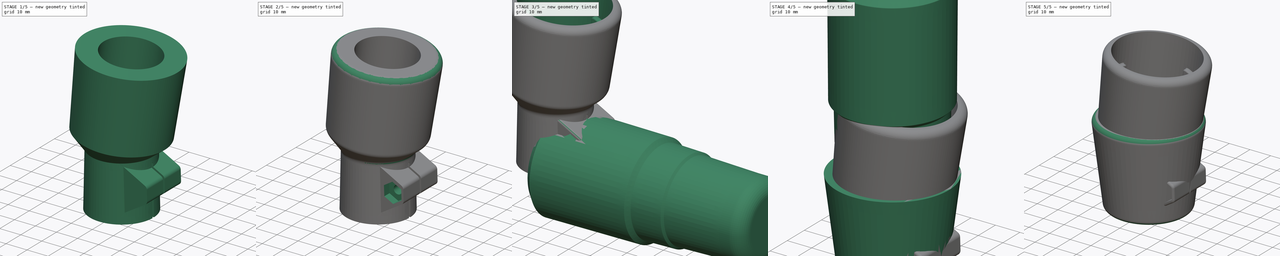
[diagram: build sequence overview — one tinted view per stage of 5, left to right]
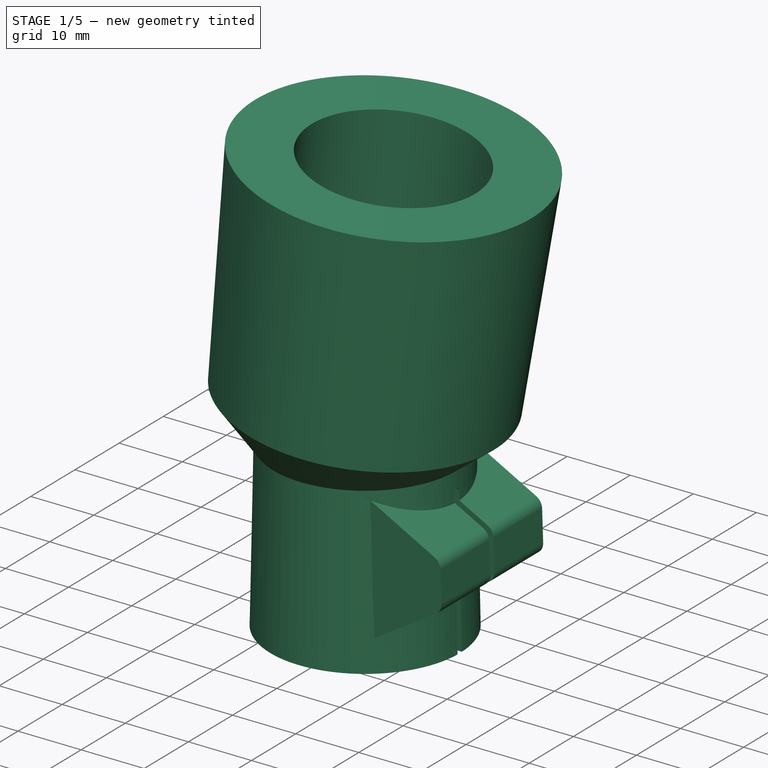
[diagram: stage 1 of 5 — iso view after this stage's code; geometry added in this stage tinted green]
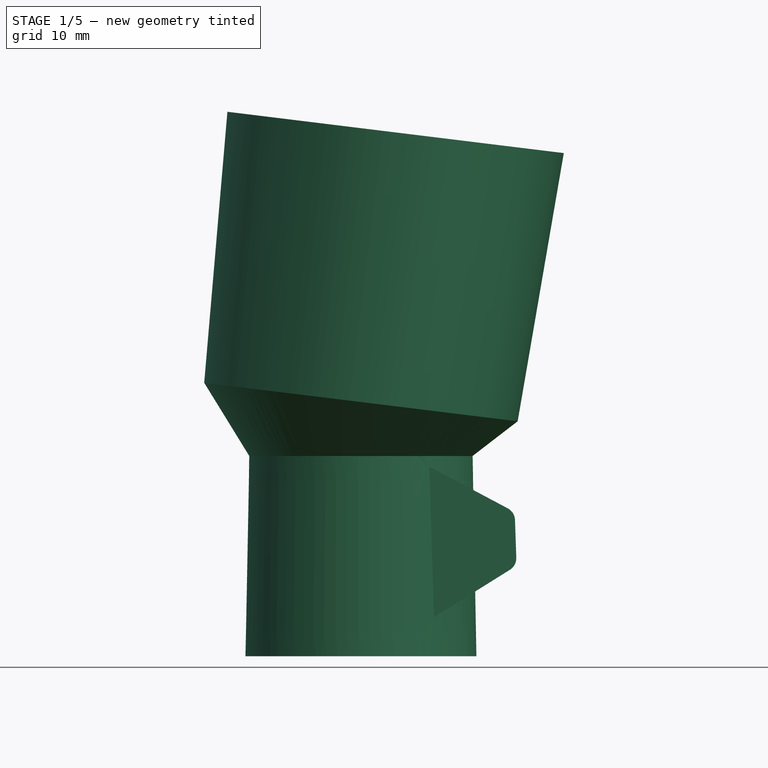
[diagram: stage 1 of 5 — front view after this stage's code; geometry added in this stage tinted green]
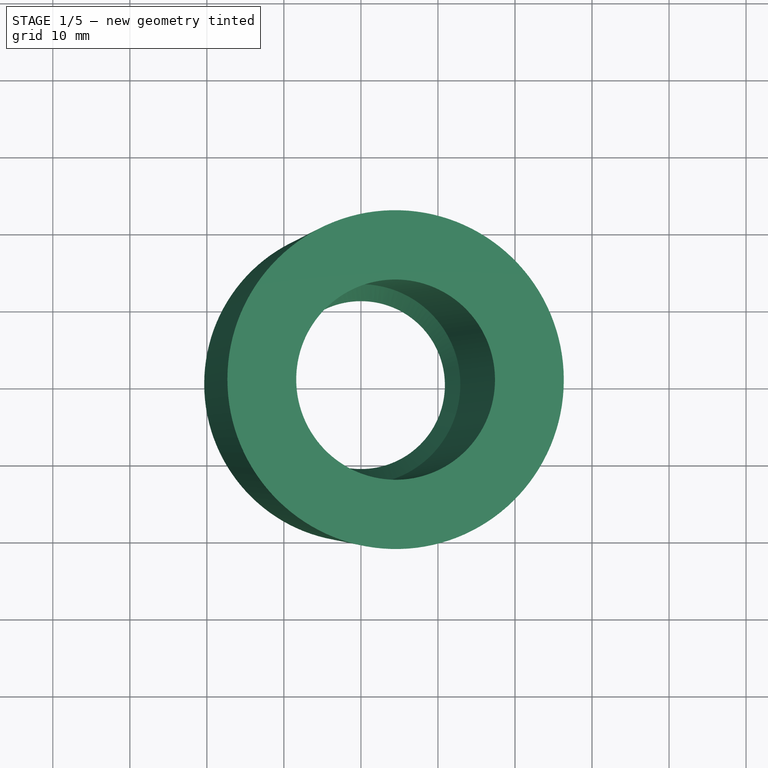
[diagram: stage 1 of 5 — top view after this stage's code; geometry added in this stage tinted green]
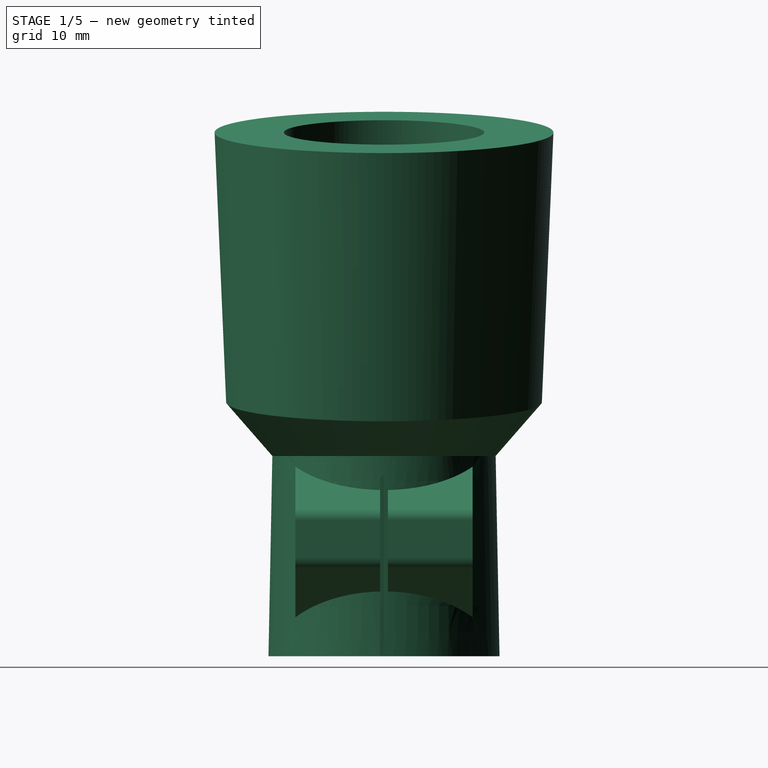
[diagram: stage 1 of 5 — right view after this stage's code; geometry added in this stage tinted green]
FCSTD DOCUMENT  (FreeCAD 0.19R)
Label: MikitaPalmSander
License: Creative Commons Attribution-NonCommercial
LicenseURL: http://creativecommons.org/licenses/by-nc/4.0/
objects: Sketcher::SketchObject×15, PartDesign::Pocket×4, Part::Cut×3, PartDesign::Body×2, Part::Fillet×2, PartDesign::Fillet×2, Part::Cone×1, Part::Cylinder×1, PartDesign::Revolution×1, PartDesign::Chamfer×1, Part::Compound×1, Part::Offset×1, PartDesign::AdditiveLoft×1, App::Link×1, PartDesign::Pad×1, PartDesign::SubtractiveLoft×1
note: 48 computed .brp shape members not serialized (recipe doc carries the construction recipe); baked Part::Feature solids carry a one-line shape summary decoded from their .brp
EXTERNAL_REF file=VacuumNozzle.FCStd obj=Body001

FEATURE [Sketcher::SketchObject] Sketch001
  AttachmentOffset = pos=(0,0,27) rot=(0,0,1;0rad)
  FullyConstrained = true
  MapMode = 5
  Placement = pos=(0,0,27) rot=(0,0,1;0rad)
  Support = -> [XY_Plane001]
  sketch-geometry (1):
    g0: Circle CenterX=0 CenterY=0 CenterZ=0 NormalX=0 NormalY=0 NormalZ=1 AngleXU=0 Radius=10.9
  constraints (2):
    c: Coincident(g0,g-1)
    c: Diameter(g0) = 21.8
FEATURE [Sketcher::SketchObject] Sketch002
  FullyConstrained = true
  MapMode = 5
  Support = -> [XY_Plane001]
  sketch-geometry (1):
    g0: Circle CenterX=0 CenterY=0 CenterZ=0 NormalX=0 NormalY=0 NormalZ=1 AngleXU=0 Radius=11.9
  constraints (2):
    c: Coincident(g0,g-1)
    c: Diameter(g0) = 23.8
FEATURE [Sketcher::SketchObject] Sketch003
  AttachmentOffset = pos=(0,0,33) rot=(0,1,0;0.122173rad)
  FullyConstrained = true
  MapMode = 5
  Placement = pos=(0,0,33) rot=(0,1,0;0.122173rad)
  Support = -> [XY_Plane001]
  sketch-geometry (1):
    g0: Circle CenterX=0 CenterY=0 CenterZ=0 NormalX=0 NormalY=0 NormalZ=1 AngleXU=0 Radius=13
  constraints (2):
    c: Coincident(g0,g-1)
    c: Diameter(g0) = 26
FEATURE [Sketcher::SketchObject] Sketch004
  FullyConstrained = true
  MapMode = 5
  Support = -> [XY_Plane001]
  sketch-geometry (1):
    g0: Circle CenterX=0 CenterY=0 CenterZ=0 NormalX=0 NormalY=0 NormalZ=1 AngleXU=0 Radius=15
  constraints (2):
    c: Coincident(g0,g-1)
    c: Diameter(g0) = 30
FEATURE [Sketcher::SketchObject] Sketch005
  AttachmentOffset = pos=(0,0,26) rot=(0,0,1;0rad)
  FullyConstrained = true
  MapMode = 5
  Placement = pos=(0,0,26) rot=(0,0,1;0rad)
  Support = -> [XY_Plane001]
  sketch-geometry (1):
    g0: Circle CenterX=0 CenterY=0 CenterZ=0 NormalX=0 NormalY=0 NormalZ=1 AngleXU=0 Radius=14.5
  constraints (2):
    c: Coincident(g0,g-1)
    c: Diameter(g0) = 29
FEATURE [Sketcher::SketchObject] Sketch006
  AttachmentOffset = pos=(0,0,33) rot=(0,1,0;0.122173rad)
  FullyConstrained = true
  MapMode = 5
  Placement = pos=(0,0,33) rot=(0,1,0;0.122173rad)
  Support = -> [XY_Plane001]
  sketch-geometry (1):
    g0: Circle CenterX=0 CenterY=0 CenterZ=0 NormalX=0 NormalY=0 NormalZ=1 AngleXU=0 Radius=20.5
  constraints (2):
    c: Coincident(g0,g-1)
    c: Diameter(g0) = 41
FEATURE [Sketcher::SketchObject] Sketch007
  AttachmentOffset = pos=(4.5,0,68) rot=(0,1,0;0.122173rad)
  FullyConstrained = true
  MapMode = 5
  Placement = pos=(4.5,0,68) rot=(0,1,0;0.122173rad)
  Support = -> [XY_Plane001]
  sketch-geometry (1):
    g0: Circle CenterX=0 CenterY=0 CenterZ=0 NormalX=0 NormalY=0 NormalZ=1 AngleXU=0 Radius=22
  constraints (2):
    c: Coincident(g0,g-1)
    c: Diameter(g0) = 44
FEATURE [PartDesign::AdditiveLoft] AdditiveLoft
  Closed = false
  Profile = -> Sketch004
  Ruled = true
  Sections = -> [Sketch005,Sketch006,Sketch007]
FEATURE [Sketcher::SketchObject] Sketch008
  FullyConstrained = true
  MapMode = 5
  Placement = pos=(0,0,0) rot=(1,0,0;1.5708rad)
  Support = -> [XZ_Plane001]
  sketch-geometry (6):
    g0: LineSegment StartX=9.14837 StartY=4.85166 StartZ=0 EndX=19.325 EndY=11.2107 EndZ=0
    g1: ArcOfCircle CenterX=18.3711 CenterY=12.7372 CenterZ=0 NormalX=0 NormalY=0 NormalZ=1 AngleXU=0 Radius=1.8 StartAngle=5.27089 EndAngle=6.31809
    g2: LineSegment StartX=20.17 StartY=12.8 StartZ=0 EndX=19.9996 EndY=17.6793 EndZ=0
    g3: ArcOfCircle CenterX=18.2007 CenterY=17.6165 CenterZ=0 NormalX=0 NormalY=0 NormalZ=1 AngleXU=0 Radius=1.8 StartAngle=0.0349066 EndAngle=1.0821
    g4: LineSegment StartX=19.0458 StartY=19.2058 StartZ=0 EndX=8.45038 EndY=24.8395 EndZ=0
    g5: LineSegment StartX=9.14837 StartY=4.85166 StartZ=0 EndX=8.45038 EndY=24.8395 EndZ=0
  constraints (16):
    c: Tangent(g0,g1) = -1.5708
    c: Tangent(g1,g2) = -1.5708
    c: Tangent(g2,g3) = -1.5708
    c: Tangent(g3,g4) = -1.5708
    c: Angle(g2) = 1.6057
    c: Equal(g1,g3)
    c: Radius(g1) = 1.8
    c: Angle(g0) = 0.558505
    c: Angle(g4) = 2.6529
    c: Distance(g3,g0) = 8
    c: DistanceY(g1) = 12.8
    c: DistanceX(g1) = 20.17
    c: Coincident(g5,g0)
    c: Coincident(g5,g4)
    c: Distance(g5) = 20
    c: Angle(g5) = 1.6057
FEATURE [App::Link] Link  label="NozzleKnockoutV2"
  LinkPlacement = pos=(11.932,1.61409e-05,130.821) rot=(0,1,0;1.69297rad)
  LinkedObject = -> <external VacuumNozzle.FCStd>#Body001
  Placement = pos=(11.932,1.61409e-05,130.821) rot=(0,1,0;1.69297rad)
FEATURE [Sketcher::SketchObject] Sketch009
  FullyConstrained = true
  MapMode = 5
  Placement = pos=(0,0,0) rot=(0.57735,0.57735,0.57735;2.0944rad)
  Support = -> [YZ_Plane001]
  sketch-geometry (4):
    g0: LineSegment StartX=-0.5 StartY=-1 StartZ=0 EndX=0.5 EndY=-1 EndZ=0
    g1: LineSegment StartX=0.5 StartY=-1 StartZ=0 EndX=0.5 EndY=23 EndZ=0
    g2: LineSegment StartX=-0.5 StartY=23 StartZ=0 EndX=-0.5 EndY=-1 EndZ=0
    g3: ArcOfCircle CenterX=0 CenterY=23 CenterZ=0 NormalX=0 NormalY=0 NormalZ=1 AngleXU=0 Radius=0.5 StartAngle=-3.544e-13 EndAngle=3.14159
  constraints (10):
    c: Coincident(g0,g1)
    c: Coincident(g2,g0)
    c: Vertical(g1)
    c: Vertical(g2)
    c: DistanceX(g0,g0) = 1
    c: Symmetric(g0,g0,g-2)
    c: DistanceY(g3) = 23
    c: Tangent(g2,g3) = -1.5708
    c: Tangent(g3,g1) = -1.5708
    c: DistanceY(g0) = -1
FEATURE [Sketcher::SketchObject] Sketch010
  AttachmentOffset = pos=(0,0,14) rot=(0,0,1;0rad)
  FullyConstrained = true
  MapMode = 5
  Placement = pos=(0,-14,-3.1e-15) rot=(1,0,0;1.5708rad)
  Support = -> [XZ_Plane001]
  sketch-geometry (7):
    g0: LineSegment StartX=15.1983 StartY=10.2699 StartZ=0 EndX=19.1955 EndY=12.8066 EndZ=0
    g1: LineSegment StartX=19.1955 StartY=12.8066 StartZ=0 EndX=18.9973 EndY=17.5367 EndZ=0
    g2: LineSegment StartX=18.9973 StartY=17.5367 StartZ=0 EndX=14.8017 EndY=19.7301 EndZ=0
    g3: LineSegment StartX=14.8017 StartY=19.7301 StartZ=0 EndX=10.8045 EndY=17.1934 EndZ=0
    g4: LineSegment StartX=10.8045 StartY=17.1934 StartZ=0 EndX=11.0027 EndY=12.4633 EndZ=0
    g5: LineSegment StartX=11.0027 StartY=12.4633 StartZ=0 EndX=15.1983 EndY=10.2699 EndZ=0
    g6: Circle CenterX=15 CenterY=15 CenterZ=0 NormalX=0 NormalY=0 NormalZ=1 AngleXU=0 Radius=4.73427
  constraints (17):
    c: Coincident(g0,g1)
    c: Coincident(g1,g2)
    c: Coincident(g2,g3)
    c: Coincident(g3,g4)
    c: Coincident(g4,g5)
    c: Coincident(g5,g0)
    c: Equal(g0, g1-g5) x5
    c: PointOnObject(g0,g6)
    c: PointOnObject(g1,g6)
    c: PointOnObject(g2,g6)
    c: PointOnObject(g3,g6)
    c: PointOnObject(g4,g6)
    c: PointOnObject(g5,g6)
    c: Distance(g0,g4) = 8.2
    c: DistanceX(g6) = 15
    c: Angle(g-2,g1) = 0.0418879
    c: DistanceY(g6) = 15
FEATURE [Sketcher::SketchObject] Sketch011
  FullyConstrained = true
  MapMode = 5
  Placement = pos=(0,0,0) rot=(1,0,0;1.5708rad)
  Support = -> [XZ_Plane001]
  sketch-geometry (1):
    g0: Circle CenterX=15 CenterY=15 CenterZ=0 NormalX=0 NormalY=0 NormalZ=1 AngleXU=0 Radius=2
  constraints (3):
    c: Diameter(g0) = 4
    c: DistanceX(g0) = 15
    c: DistanceY(g0) = 15
FEATURE [PartDesign::Pad] Pad
  BaseFeature = -> AdditiveLoft
  Direction = (0,-1,2e-16)
  Length = 23
  Length2 = 100
  Midplane = true
  Profile = -> Sketch008
  Type = 0
FEATURE [Sketcher::SketchObject] Sketch012
  FullyConstrained = false
  MapMode = 5
  Support = -> [XY_Plane001]
  sketch-geometry (6):
    g0: ArcOfCircle CenterX=12.4514 CenterY=0 CenterZ=0 NormalX=0 NormalY=0 NormalZ=1 AngleXU=0 Radius=7.72998 StartAngle=5.34152 EndAngle=7.22485
    g1: LineSegment StartX=17 StartY=-6.25 StartZ=0 EndX=3.25961 EndY=-16.25 EndZ=0
    g2: LineSegment StartX=3.25961 StartY=-16.25 StartZ=0 EndX=21.2596 EndY=-16.25 EndZ=0
    g3: LineSegment StartX=21.2596 StartY=-16.25 StartZ=0 EndX=21.2596 EndY=16.25 EndZ=0
    g4: LineSegment StartX=21.2596 StartY=16.25 StartZ=0 EndX=3.25961 EndY=16.25 EndZ=0
    g5: LineSegment StartX=3.25961 StartY=16.25 StartZ=0 EndX=17 EndY=6.25 EndZ=0
  constraints (15):
    c: PointOnObject(g0,g-1)
    c: Distance(g0,g0) = 12.5
    c: Coincident(g1,g2)
    c: Coincident(g2,g3)
    c: Vertical(g3)
    c: Coincident(g3,g4)
    c: Horizontal(g4)
    c: Coincident(g4,g5)
    c: Tangent(g5,g0) = 1.5708
    c: Tangent(g1,g0) = 1.5708
    c: Symmetric(g1,g4,g-1)
    c: Horizontal(g2)
    c: DistanceX(g0) = 17
    c: DistanceY(g3,g3) = 32.5
    c: DistanceX(g2,g2) = 18
FEATURE [Sketcher::SketchObject] Sketch013
  AttachmentOffset = pos=(0,0,-13) rot=(0,0,1;0rad)
  FullyConstrained = true
  MapMode = 5
  Placement = pos=(0,13,2.9e-15) rot=(1,0,0;1.5708rad)
  Support = -> [XZ_Plane001]
  sketch-geometry (1):
    g0: Circle CenterX=15 CenterY=15 CenterZ=0 NormalX=0 NormalY=0 NormalZ=1 AngleXU=0 Radius=3.8
  constraints (3):
    c: Diameter(g0) = 7.6
    c: DistanceX(g0) = 15
    c: DistanceY(g0) = 15
FEATURE [Sketcher::SketchObject] Sketch014
  FullyConstrained = true
  MapMode = 11
  Placement = pos=(4.5,0,68) rot=(0.060935,0.060935,0.99628;1.57452rad)
  Support = -> [Pad]
  sketch-geometry (1):
    g0: Circle CenterX=0 CenterY=0 CenterZ=0 NormalX=0 NormalY=0 NormalZ=1 AngleXU=0 Radius=13
  constraints (2):
    c: Coincident(g0,g-1)
    c: Diameter(g0) = 26
FEATURE [PartDesign::Pocket] Pocket
  BaseFeature = -> Pad
  Length = 5
  Length2 = 100
  Profile = -> Sketch009
  Reversed = true
  Type = 1
FEATURE [PartDesign::SubtractiveLoft] SubtractiveLoft
  BaseFeature = -> Pocket
  Closed = false
  Profile = -> Sketch002
  Ruled = true
  Sections = -> [Sketch001,Sketch003,Sketch014]
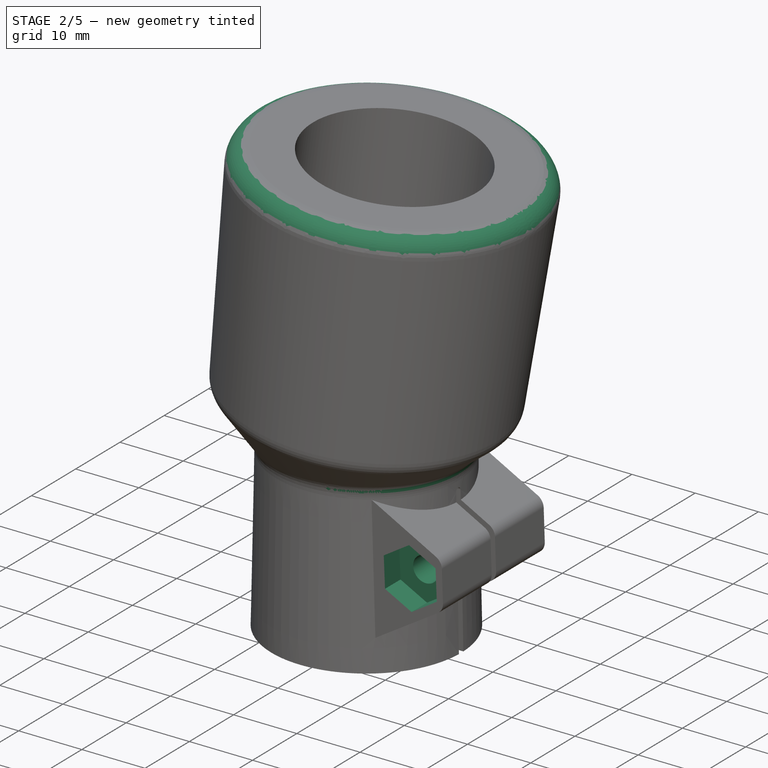
[diagram: stage 2 of 5 — iso view after this stage's code; geometry added in this stage tinted green]
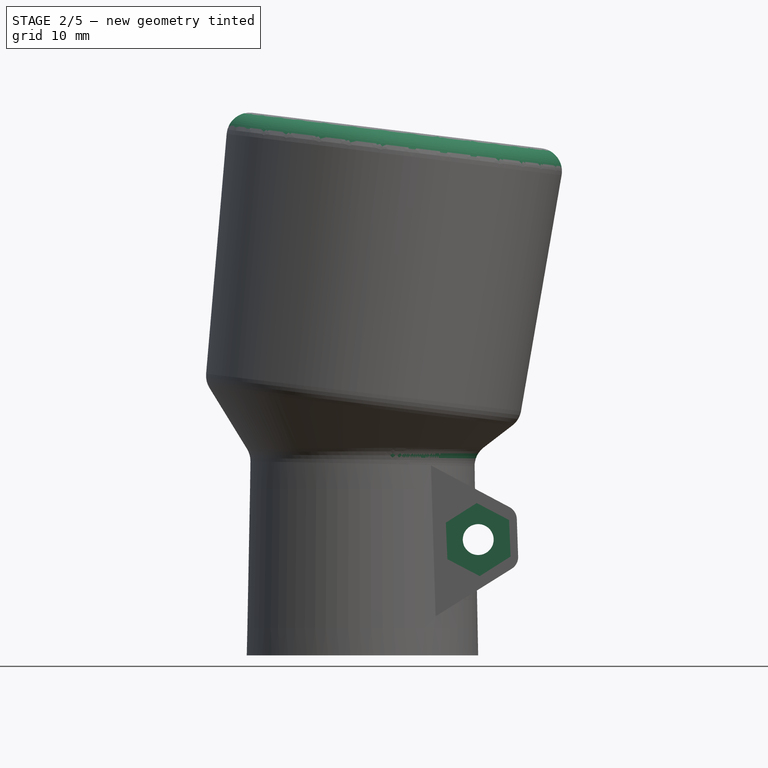
[diagram: stage 2 of 5 — front view after this stage's code; geometry added in this stage tinted green]
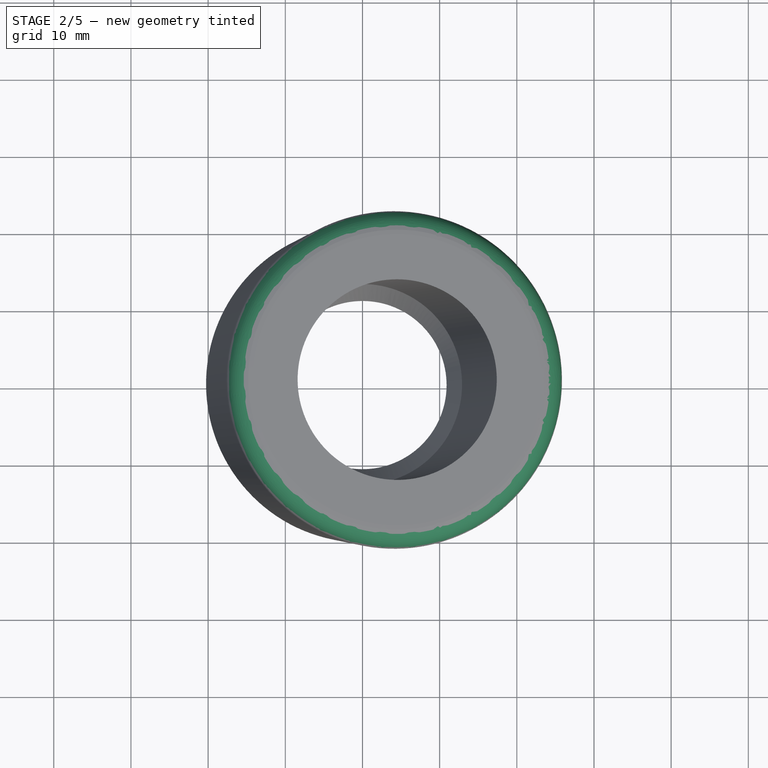
[diagram: stage 2 of 5 — top view after this stage's code; geometry added in this stage tinted green]
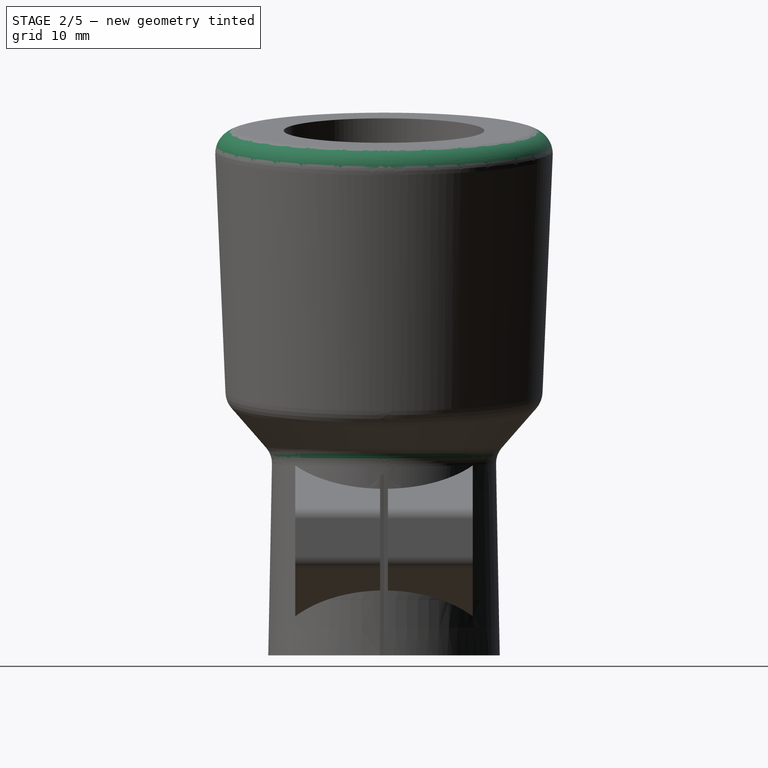
[diagram: stage 2 of 5 — right view after this stage's code; geometry added in this stage tinted green]
FEATURE [PartDesign::Pocket] Pocket001
  BaseFeature = -> SubtractiveLoft
  Length = 6
  Length2 = 100
  Profile = -> Sketch010
  Type = 0
FEATURE [PartDesign::Pocket] Pocket002
  BaseFeature = -> Pocket001
  Length = 5
  Length2 = 100
  Profile = -> Sketch013
  Reversed = true
  Type = 0
FEATURE [PartDesign::Pocket] Pocket003
  BaseFeature = -> Pocket002
  Length = 5
  Length2 = 100
  Midplane = true
  Profile = -> Sketch011
  Type = 1
FEATURE [PartDesign::Fillet] Fillet002
  Base = -> Pocket003 [Edge66,Edge30,Edge90]
  BaseFeature = -> Pocket003
  Radius = 3
  SupportTransform = false
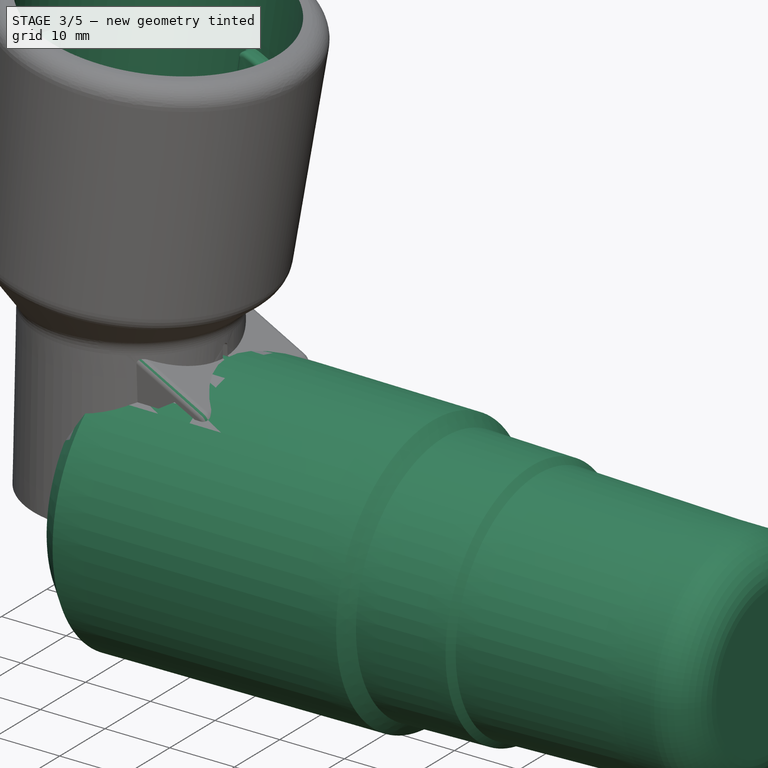
[diagram: stage 3 of 5 — iso view after this stage's code; geometry added in this stage tinted green]
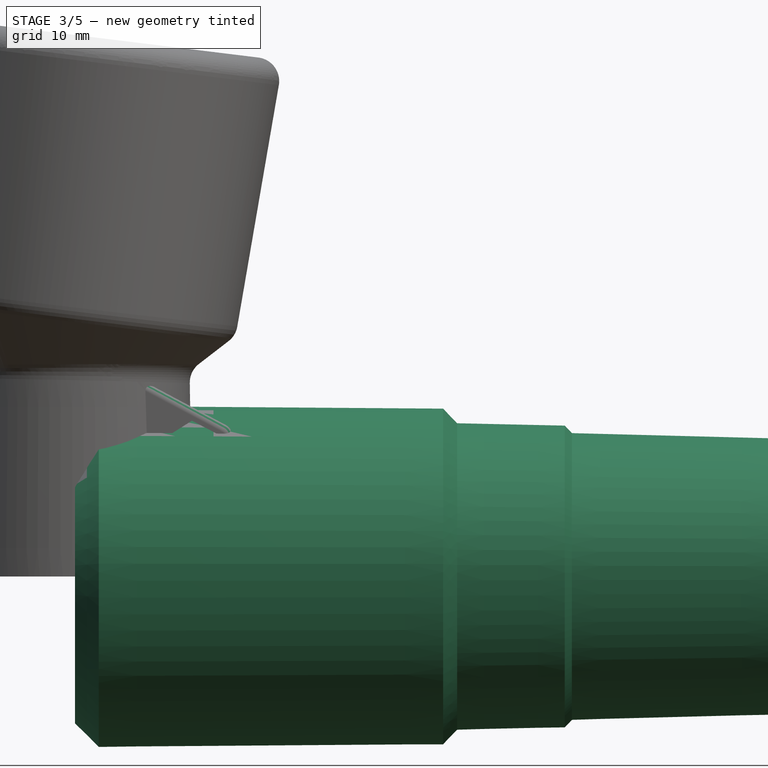
[diagram: stage 3 of 5 — front view after this stage's code; geometry added in this stage tinted green]
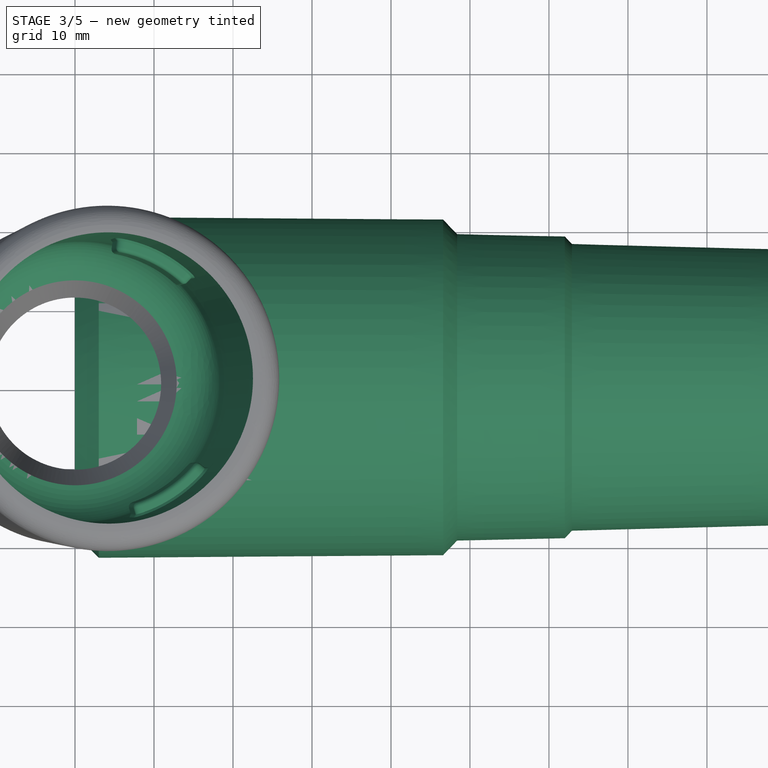
[diagram: stage 3 of 5 — top view after this stage's code; geometry added in this stage tinted green]
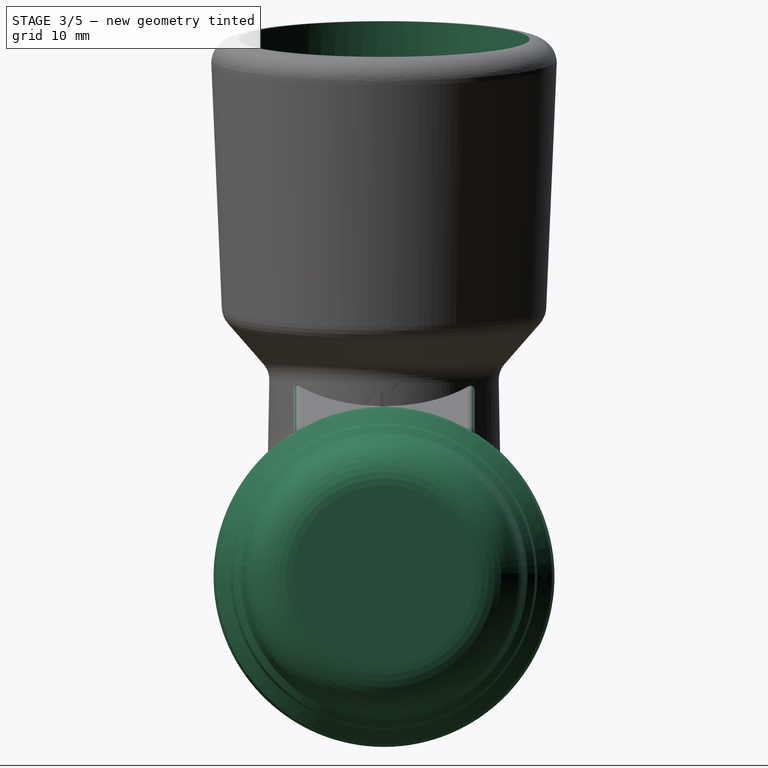
[diagram: stage 3 of 5 — right view after this stage's code; geometry added in this stage tinted green]
FEATURE [Sketcher::SketchObject] Sketch
  FullyConstrained = false
  MapMode = 5
  Placement = pos=(0,0,0) rot=(1,0,0;1.5708rad)
  Support = -> [XZ_Plane]
  sketch-geometry (12):
    g0: LineSegment StartX=0 StartY=21.6 StartZ=0 EndX=46.5987 EndY=21.25 EndZ=0
    g1: LineSegment StartX=46.5987 StartY=21.25 StartZ=0 EndX=48.3691 EndY=19.4 EndZ=0
    g2: LineSegment StartX=48.3691 StartY=19.4 StartZ=0 EndX=62.0091 EndY=19.1 EndZ=0
    g3: LineSegment StartX=62.0091 StartY=19.1 StartZ=0 EndX=62.9111 EndY=18.15 EndZ=0
    g4: LineSegment StartX=62.9111 StartY=18.15 StartZ=0 EndX=87.989 EndY=17.5 EndZ=0
    g5: LineSegment StartX=98.5 StartY=0 StartZ=0 EndX=0 EndY=0 EndZ=0
    g6: LineSegment StartX=0 StartY=0 StartZ=0 EndX=0 EndY=21.6 EndZ=0
    g7: LineSegment StartX=46.5987 StartY=21.25 StartZ=0 EndX=48.3691 EndY=19.4 EndZ=0
    g8: LineSegment StartX=62.0091 StartY=19.1 StartZ=0 EndX=62.9111 EndY=18.15 EndZ=0
    g9: LineSegment StartX=87.989 StartY=17.5 StartZ=0 EndX=92.5 EndY=17.5 EndZ=0
    g10: ArcOfCircle CenterX=92.5 CenterY=11.5 CenterZ=0 NormalX=0 NormalY=0 NormalZ=1 AngleXU=0 Radius=6 StartAngle=1.66667e-07 EndAngle=1.5708
    g11: LineSegment StartX=98.5 StartY=11.5 StartZ=0 EndX=98.5 EndY=0 EndZ=0
  constraints (34):
    c: PointOnObject(g0,g-2)
    c: Coincident(g0,g1)
    c: Coincident(g1,g2)
    c: Coincident(g3,g4)
    c: Coincident(g5,g6)
    c: Coincident(g6,g0)
    c: PointOnObject(g5,g-2)
    c: Distance(g0) = 46.6
    c: Distance(g-1,g0) = 21.6
    c: DistanceY(g0) = 21.25
    c: DistanceY(g1) = 19.4
    c: DistanceY(g2) = 19.1
    c: DistanceY(g3) = 18.15
    c: DistanceY(g4) = 17.5
    c: Horizontal(g5)
    c: PointOnObject(g7,g0)
    c: PointOnObject(g7,g2)
    c: Angle(g2,g7) = 2.35619
    c: Distance(g5) = 98.5
    c: Angle(g4,g8) = 2.35619
    c: DistanceY(g1,g7) = 1.85
    c: Coincident(g2,g3)
    c: Coincident(g2,g8)
    c: DistanceX(g2,g2) = 13.64
    c: Coincident(g3,g8)
    c: Distance(g3) = 1.31
    c: Angle(g2,g1) = 2.35619
    c: Horizontal(g9)
    c: Tangent(g10,g9) = 1.5708
    c: PointOnObject(g5,g-1)
    c: Coincident(g11,g10)
    c: Coincident(g11,g5)
    c: Vertical(g11)
    c: Coincident(g4,g9)
FEATURE [PartDesign::Revolution] Revolution
  Angle = 360
  Axis = (1,0,0)
  Base = (0,0,0)
  Placement = pos=(0,0,0) rot=(1,0,0;1.5708rad)
  Profile = -> Sketch
  ReferenceAxis = -> X_Axis
FEATURE [PartDesign::Chamfer] Chamfer
  Angle = 45
  Base = -> Revolution [Edge2]
  BaseFeature = -> Revolution
  ChamferType = 0
  FlipDirection = false
  Placement = pos=(0,0,0) rot=(1,0,0;1.5708rad)
  Size = 3
  Size2 = 1
  SupportTransform = false
FEATURE [PartDesign::Fillet] Fillet003
  Base = -> Fillet002 [Edge45,Edge30]
  BaseFeature = -> Fillet002
  Radius = 1
  SupportTransform = false
FEATURE [PartDesign::Body] Body001  label="Version2"
  Group = -> [Sketch001,Sketch002,Sketch003,Sketch004,Sketch005,Sketch006,Sketch007,AdditiveLoft,Sketch008,Sketch009,Sketch010,Sketch011,Pad,Sketch012,Sketch013,Sketch014,Pocket,SubtractiveLoft,Pocket001,Pocket002,Pocket003,Fillet002,Fillet003]
  Origin = -> Origin001
  Tip = -> Fillet003
FEATURE [Part::Cut] Cut002
  Base = -> Body001
  Tool = -> Link
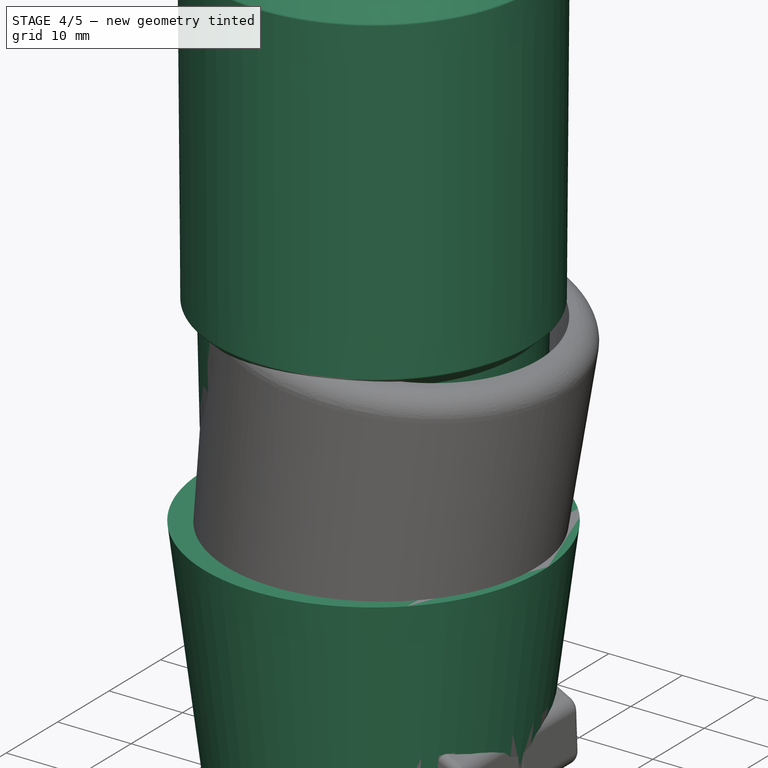
[diagram: stage 4 of 5 — iso view after this stage's code; geometry added in this stage tinted green]
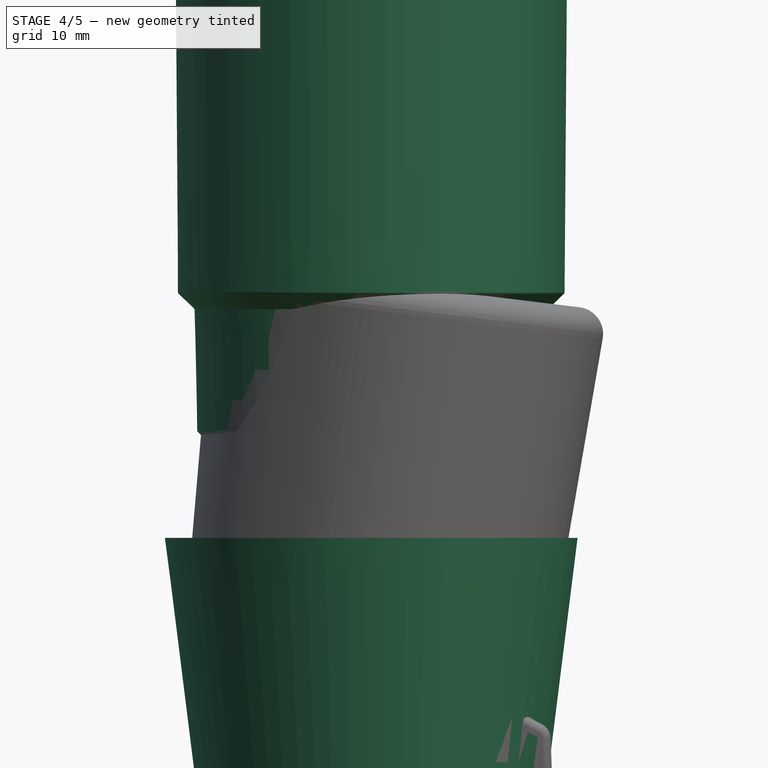
[diagram: stage 4 of 5 — front view after this stage's code; geometry added in this stage tinted green]
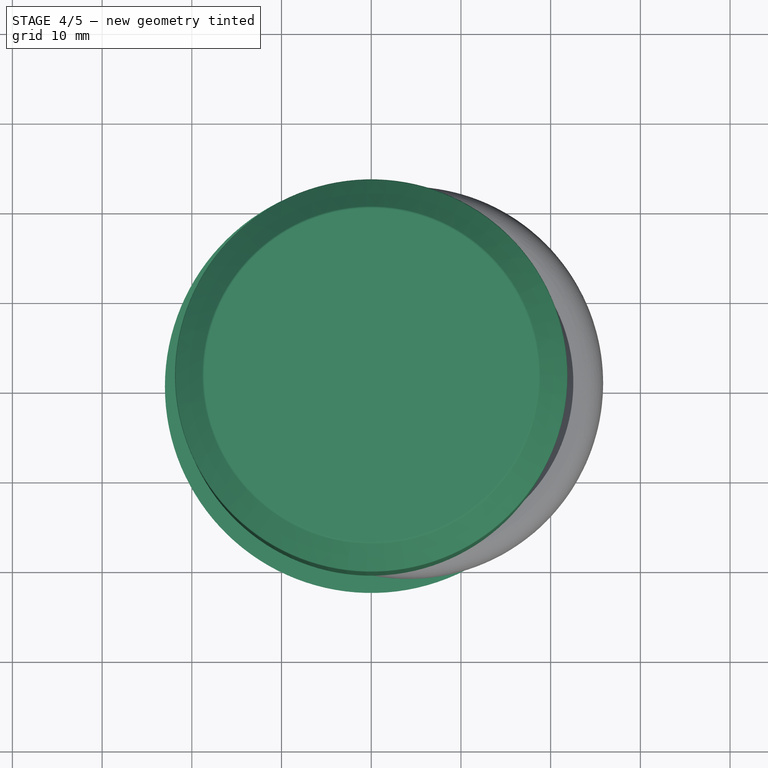
[diagram: stage 4 of 5 — top view after this stage's code; geometry added in this stage tinted green]
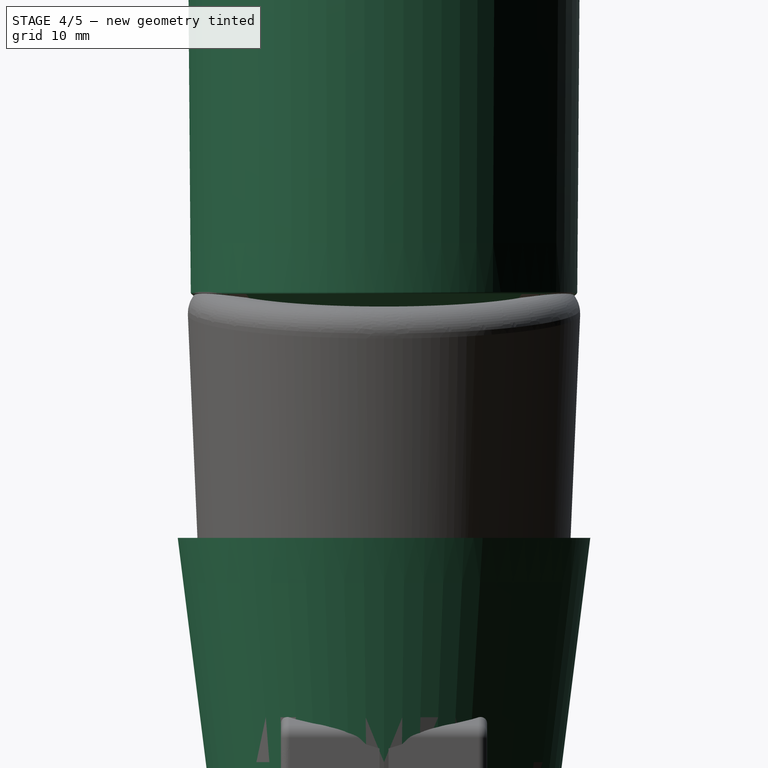
[diagram: stage 4 of 5 — right view after this stage's code; geometry added in this stage tinted green]
FEATURE [Part::Cone] Cone
  Angle = 360
  AttacherType = Attacher::AttachEngine3D
  Height = 40
  Radius1 = 18
  Radius2 = 23
FEATURE [Part::Cylinder] Cylinder
  Angle = 360
  AttacherType = Attacher::AttachEngine3D
  Height = 35
  Radius = 11.2
FEATURE [PartDesign::Body] Body  label="Nozzle"
  Group = -> [Sketch,Revolution,Chamfer]
  Origin = -> Origin
  Tip = -> Chamfer
FEATURE [Part::Compound] Compound
  Links = -> [Body]
  Placement = pos=(5.8e-15,0,0) rot=(0,0,1;0rad)
FEATURE [Part::Offset] Offset
  Fill = false
  Intersection = false
  Join = 0
  Mode = 0
  Placement = pos=(-2.5e-14,0,114) rot=(0,1,0;1.5708rad)
  SelfIntersection = false
  Source = -> Compound
  Value = 0.3
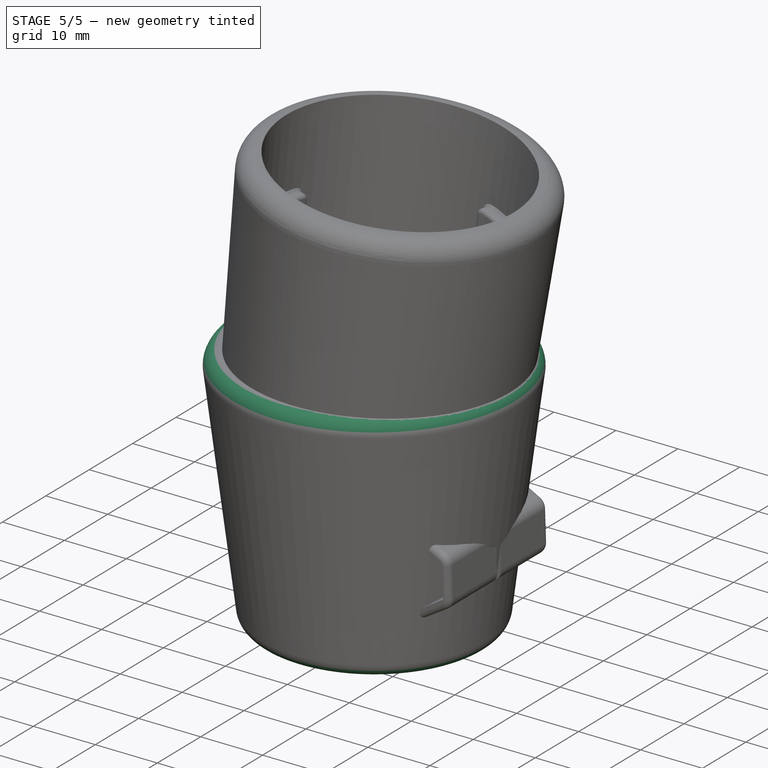
[diagram: stage 5 of 5 — iso view after this stage's code; geometry added in this stage tinted green]
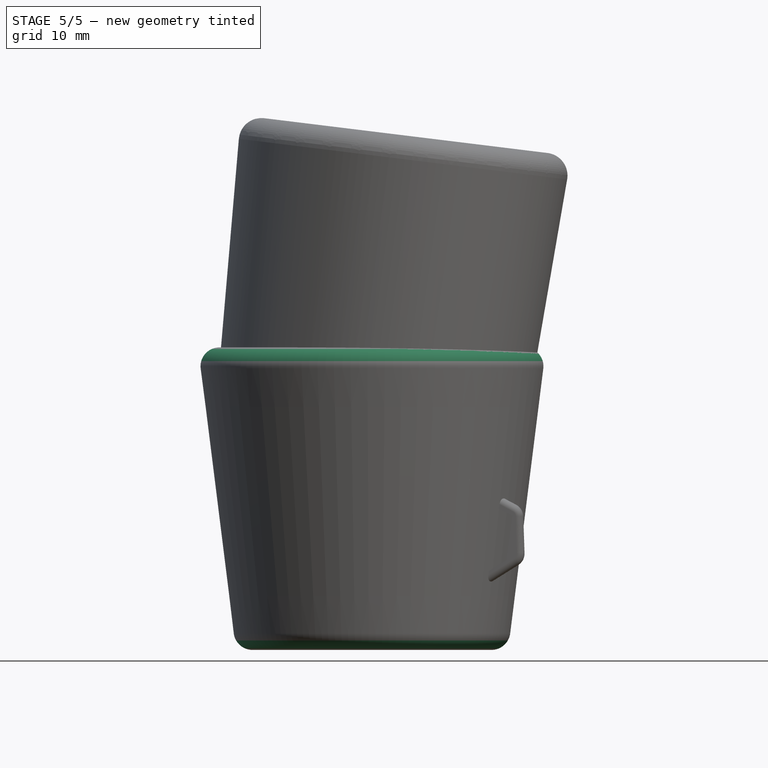
[diagram: stage 5 of 5 — front view after this stage's code; geometry added in this stage tinted green]
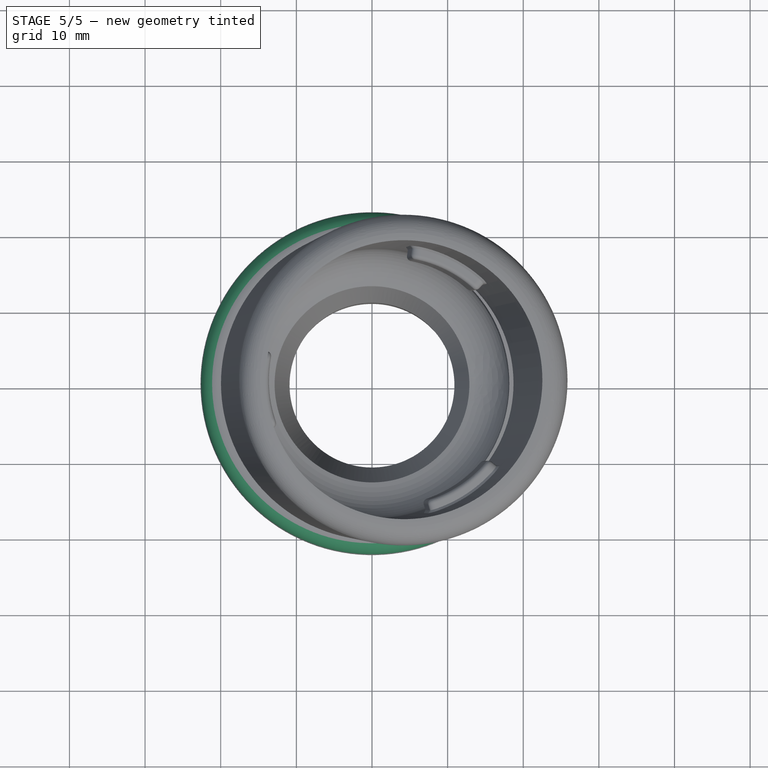
[diagram: stage 5 of 5 — top view after this stage's code; geometry added in this stage tinted green]
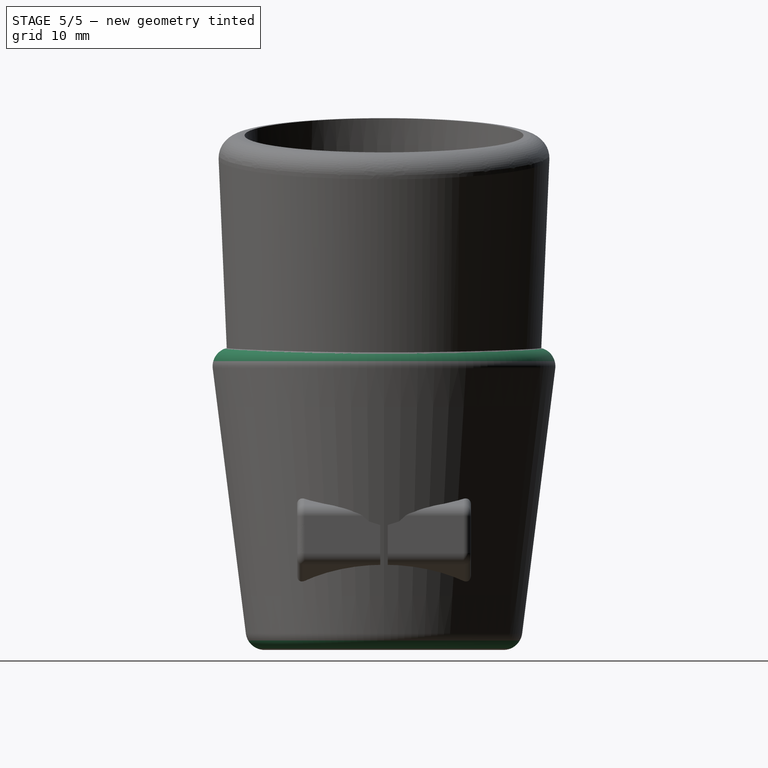
[diagram: stage 5 of 5 — right view after this stage's code; geometry added in this stage tinted green]
FEATURE [Part::Cut] Cut
  Base = -> Cone
  Tool = -> Cylinder
FEATURE [Part::Cut] Cut001
  Base = -> Cut
  Tool = -> Offset
FEATURE [Part::Fillet] Fillet
  Base = -> Cut001
  Edges = 1 edges r=2.5: [Edge1]
FEATURE [Part::Fillet] Fillet001  label="Version1"
  Base = -> Fillet
  Edges = 1 edges r=2.5: [Edge3]
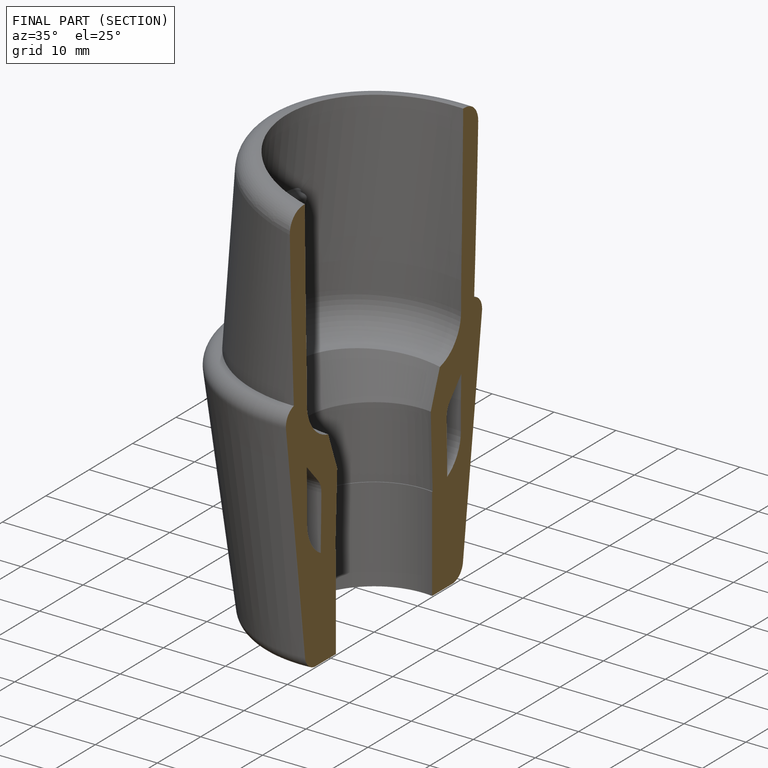
[diagram: finished part — half-section view (interior)]
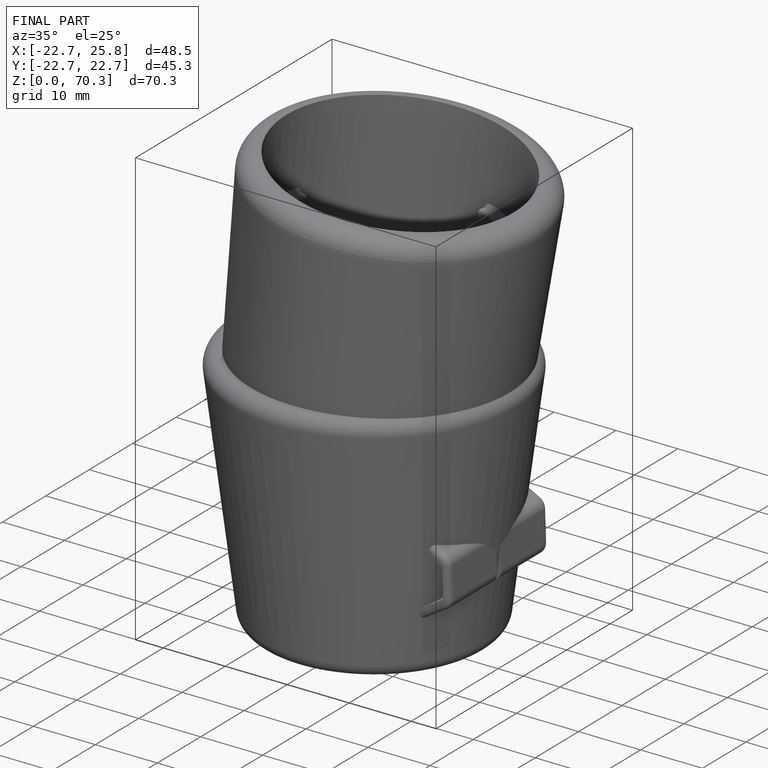
[diagram: finished part — iso view with bounding-box wireframe]
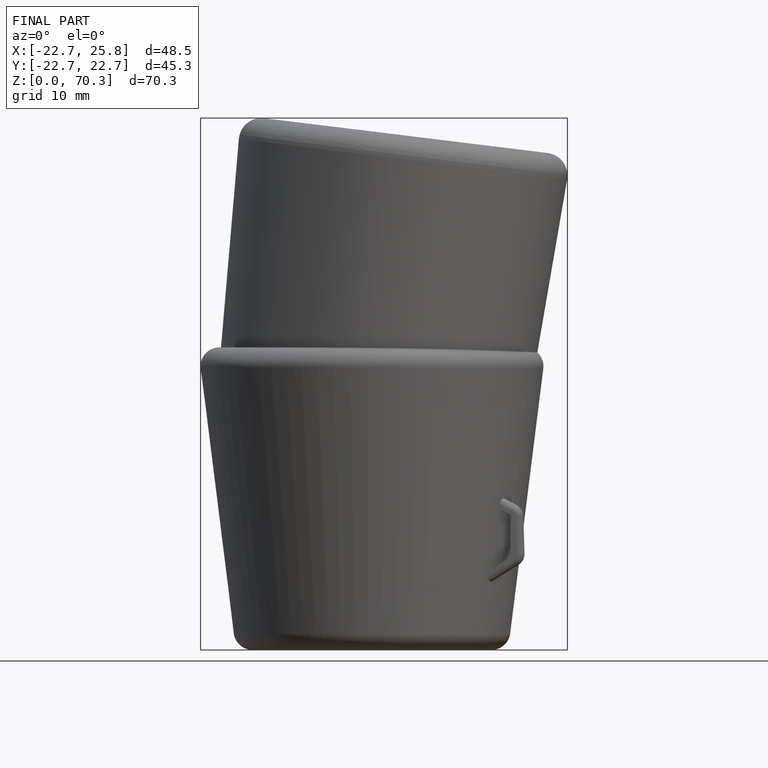
[diagram: finished part — front view with bounding-box wireframe]
